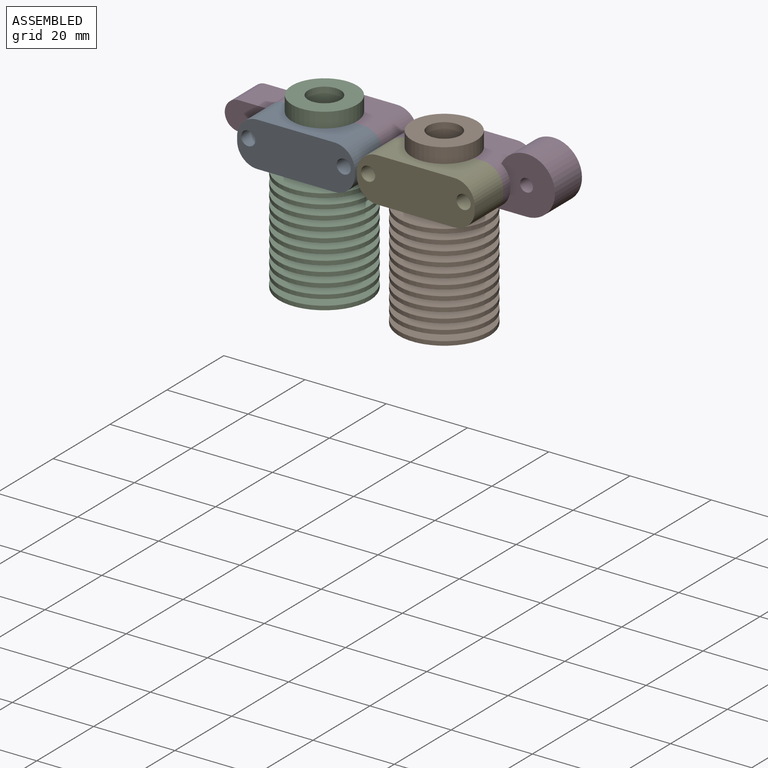
[diagram: assembled view]
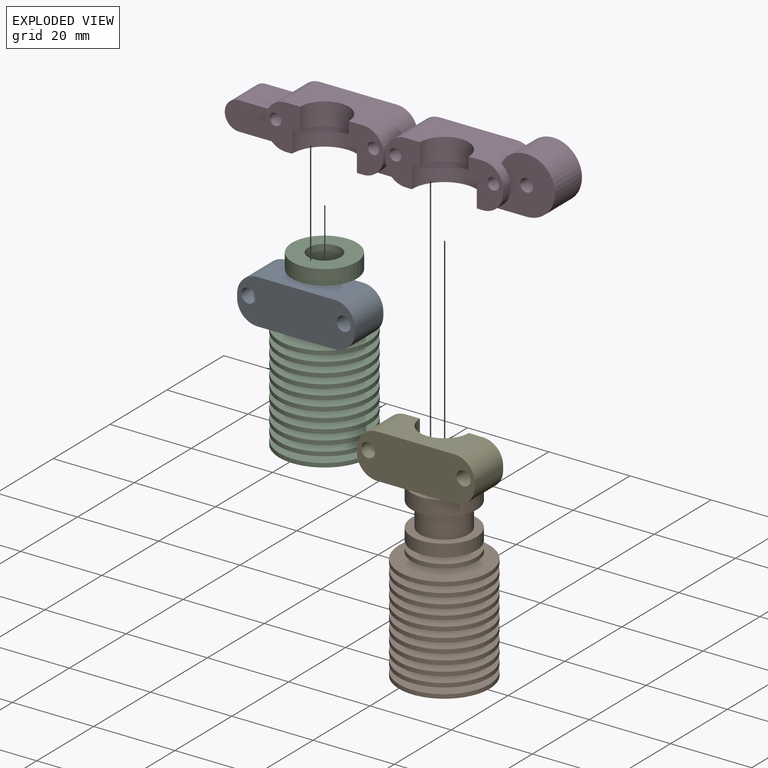
[diagram: exploded view]
GUIDED TOUR — MATED ASSEMBLY (Onshape document 79f08491d5d5d08a1efb7673, AutoMate assembly 79f08491d5d5d08a1efb7673_f55b34cfa2ff6e9371b928e5_1158f274727604746bdbfa79_default)

This assembly has 5 components, labeled P0..P4 below (a component is one placed occurrence of a part; the same part can appear more than once), held together by 4 mates. A mate is a constraint between two components; its type names the relative motion it leaves free:
  FASTENED — locks the two components together rigidly (no relative motion).
Axis/direction vectors are unit vectors and 'through' points are millimeter coordinates, both in the assembly's world frame.

MATES
  1. FASTENED "Fastened 1": P2 <-> P3, direction (0.000, 0.000, 1.000) through (-3.79, -1.99, 3.18) mm
  2. FASTENED "Fastened 2": P1 <-> P3, direction (0.000, 0.000, 1.000) through (25.71, -1.99, 3.18) mm
  3. FASTENED "Fastened 4": P4 <-> P3, direction (0.000, 0.000, 1.000) through (19.71, -1.99, 3.18) mm
  4. FASTENED "Fastened 3": P0 <-> P3, direction (0.000, 0.000, -1.000) through (2.21, -1.99, 3.18) mm

ASSEMBLY ORDER
  1. P3 — the base component [order heuristic]
  2. P0 [order heuristic]
  3. P1 [order heuristic]
  4. P2 [order heuristic]
  5. P4 [order heuristic]
Order-tag legend:
  [order heuristic] — this assembly is geometrically interlocked (no collision-free removal order exists), so components are listed in mate-graph order; insertion feasibility is not verified.

Of the 5 components, 4 carry the full construction recipe — the FeatureScript program that regenerates the part's solid from scratch; the rest are supplied as boundary geometry only.
Each toured component is shown spotlighted twice — in the assembled view, then in the exploded view, where a leader line traces a displaced component back to its assembled socket (saturated green if recipe-attached, orange if geometry-only; every other component desaturated gray) — followed by its recipe or geometry summary and the mates that hold it.
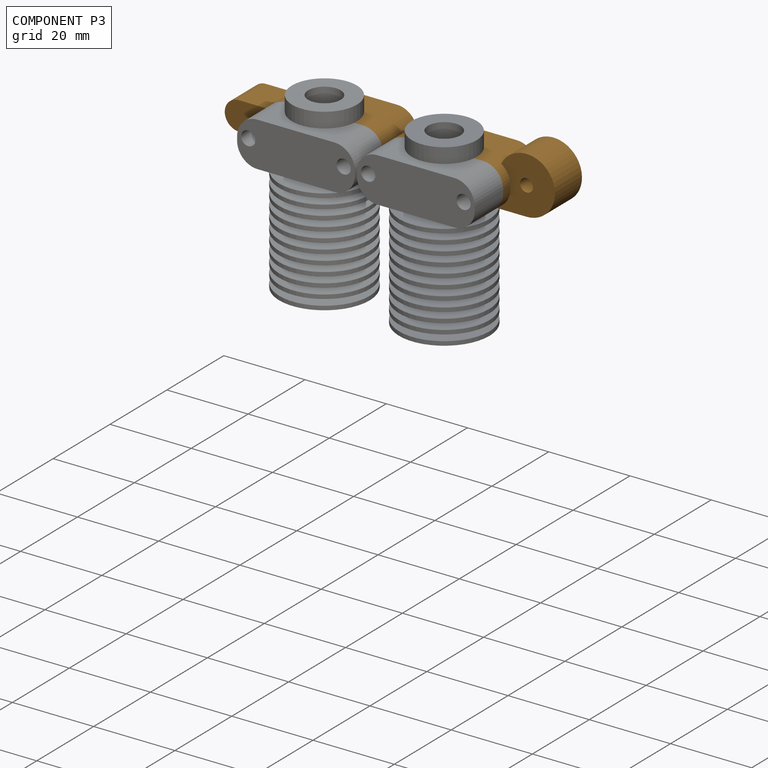
[diagram: component P3 — assembled]
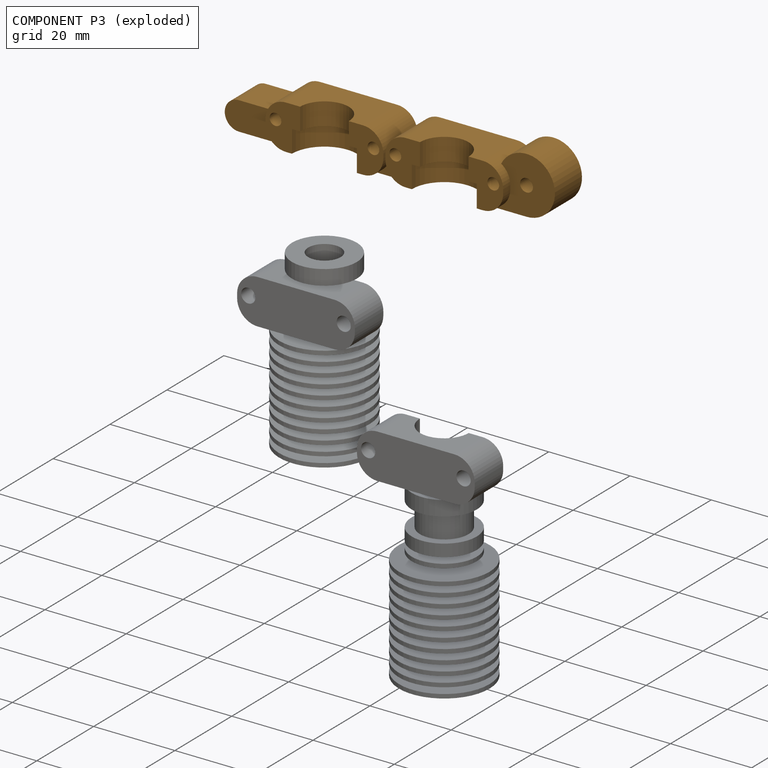
[diagram: component P3 — exploded]
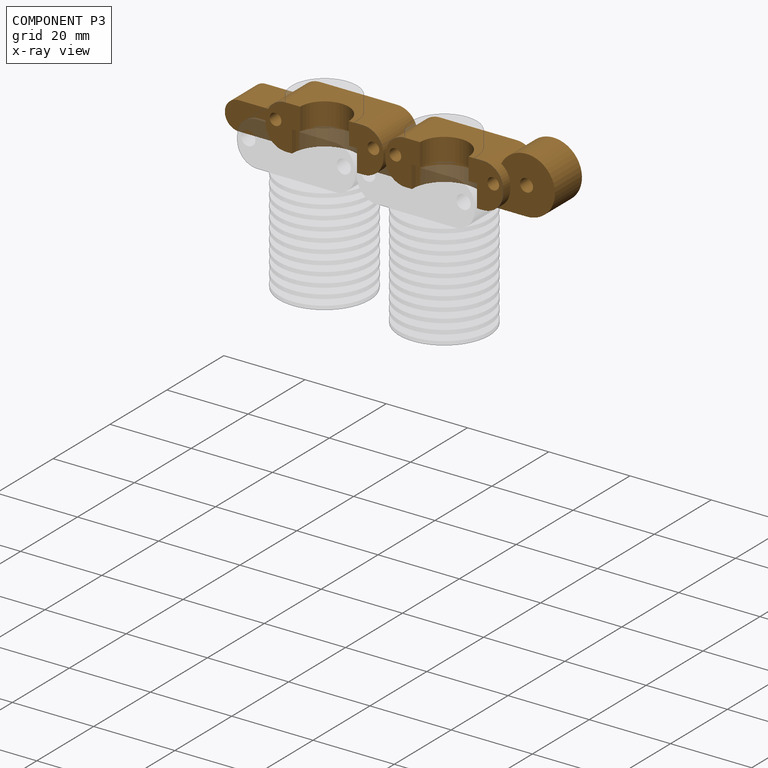
[diagram: component P3 — x-ray view]
COMPONENT P3 — geometry summary (no construction recipe available for this part):
  bounding box: 81.3 x 14.0 x 12.0 mm
  B-rep topology: 1 solid, 38 faces, 224 edges
  volume: 7298 mm^3 (53% of its bounding box)
Held by: FASTENED mate "Fastened 1" to P2; FASTENED mate "Fastened 2" to P1; FASTENED mate "Fastened 4" to P4; FASTENED mate "Fastened 3" to P0.
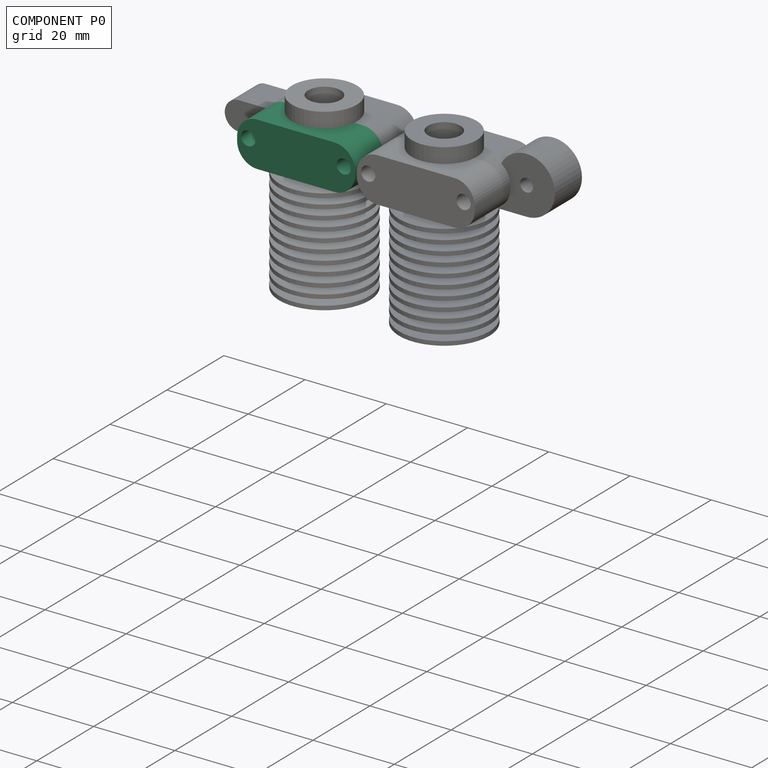
[diagram: component P0 — assembled]
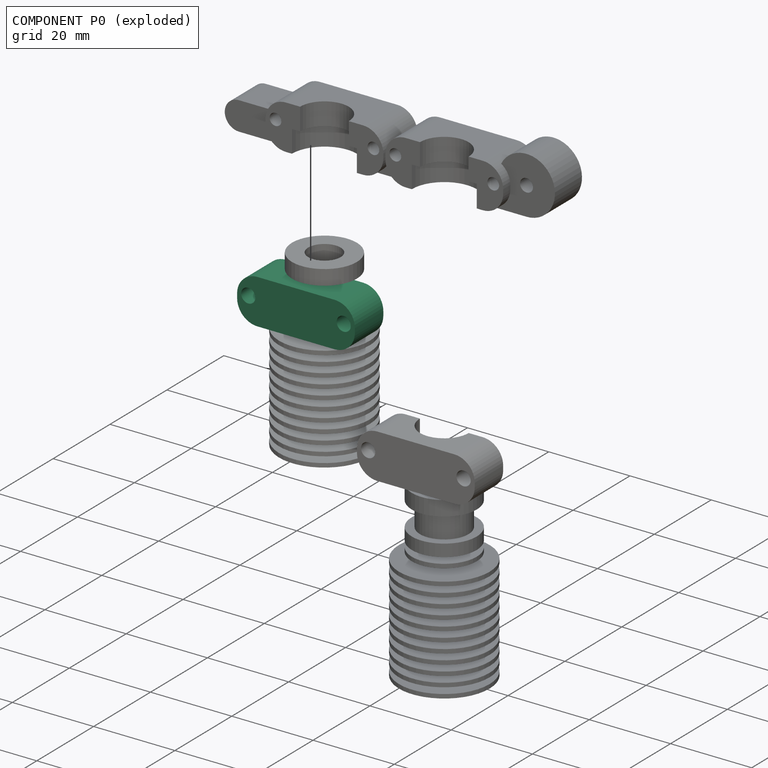
[diagram: component P0 — exploded]
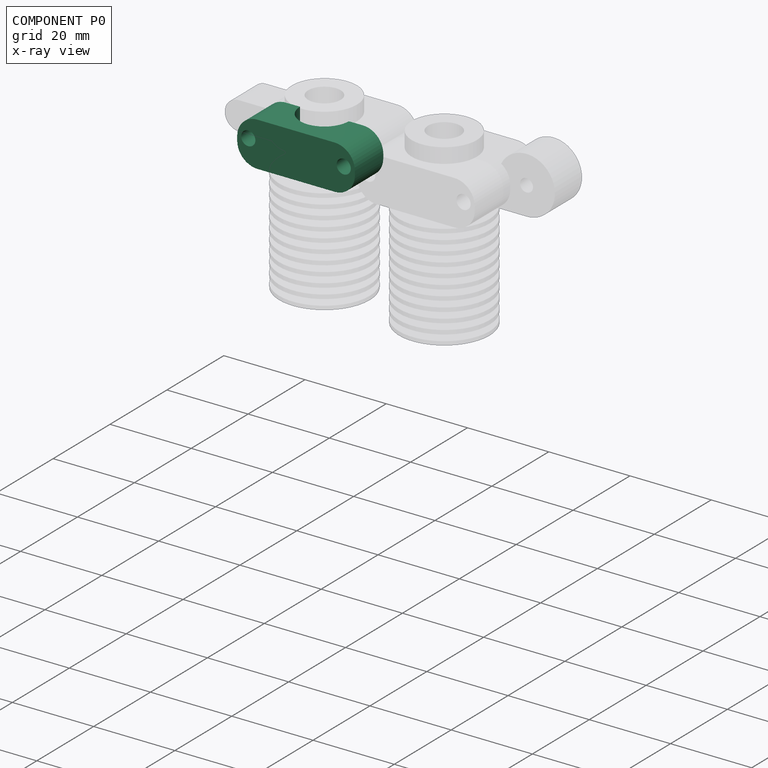
[diagram: component P0 — x-ray view]
COMPONENT P0 — recipe-attached (CADFS 00152271, mesh-verified: the recipe's output STEP matches this component's geometry to below the mesh-comparison resolution (tessellation chordal tolerance ~0.0489 mm)).
Held by: FASTENED mate "Fastened 3" to P3.
Construction recipe (FeatureScript — the CAD program that rebuilds this solid; sketch coordinates are in the units given by the * unit suffixes, e.g. mm):

FeatureScript 1511;
import(path : "onshape/std/geometry.fs", version : "1511.0");
import(path : "onshape/std/common.fs", version : "1511.0");
const mm = millimeter;
const VERTEX = EntityType.VERTEX;
const EDGE = EntityType.EDGE;
const FACE = EntityType.FACE;
const BODY = EntityType.BODY;
function v(x, y){return vector(x, y);}
function OD(order){return orderDisambiguation(order);}
function OSD(set){return originalSetDisambiguation(set);}
function TD(topology){return topologyDisambiguation(topology);}
function TDD(query){return trueDependencyDisambiguation(query);}
function sQuery(a, b, c) {return sketchEntityQuery(a, b, c);}

annotation { "Feature Type Name" : "Feature", "Feature Type Description" : "" }
export const myFeature = defineFeature(function(context is Context, id is Id, definition is map)
    precondition{}
    {
        {
            var Q0;
            Q0=qCreatedBy(makeId("Top.planeOp"),FACE);
            var sketch = newSketch(context, id + "F0", { "sketchPlane" : qUnion([Q0])});
            skLineSegment(sketch, "E0.bottom", {"start": v(0, 0) * mm, "end": v(25, 0) * mm});
            skLineSegment(sketch, "E0.top", {"start": v(0, 11) * mm, "end": v(25, 11) * mm});
            skLineSegment(sketch, "E0.left", {"start": v(0, 0) * mm, "end": v(0, 11) * mm});
            skLineSegment(sketch, "E0.right", {"start": v(25, 0) * mm, "end": v(25, 11) * mm});
            skSolve(sketch);
        }
        {
            var Q0;
            Q0=qSketchRegion(id+"F0",true);
            extrude(context, id + "F1", {"entities" : qUnion([Q0]), "depth" : 10 * mm});
        }
        {
            var Q0;
            Q0=makeQuery(id+"F1.opExtrude","SWEPT_FACE",FACE,{"disambiguationData":[OSD([sQuery(id+"F0.wireOp",EDGE,"E0.bottom")])]});
            var sketch = newSketch(context, id + "F2", { "sketchPlane" : qUnion([Q0])});
            skCircle(sketch, "E1", {"center": v(12.5, 10) * mm, "radius": 8 * mm});
            skSolve(sketch);
        }
        {
            var Q0;
            Q0=qSketchRegion(id+"F2",true);
            extrude(context, id + "F3", {"entities" : qUnion([Q0]), "operationType" : NewBodyOperationType.REMOVE, "oppositeDirection" : true, "depth" : 5.5 * mm});
        }
        {
            var Q0;
            Q0=makeQuery(id+"F1.opExtrude","SWEPT_FACE",FACE,{"disambiguationData":[OSD([sQuery(id+"F0.wireOp",EDGE,"E0.top")])]});
            var sketch = newSketch(context, id + "F4", { "sketchPlane" : qUnion([Q0])});
            skCircle(sketch, "E2", {"center": v(-12.5, 10) * mm, "radius": 6 * mm});
            skSolve(sketch);
        }
        {
            var Q0;
            Q0=qSketchRegion(id+"F4",true);
            extrude(context, id + "F5", {"entities" : qUnion([Q0]), "operationType" : NewBodyOperationType.REMOVE, "oppositeDirection" : true, "depth" : 6 * mm});
        }
        {
            var Q0;
            Q0=makeQuery(id+"F1.opExtrude","SWEPT_FACE",FACE,{"disambiguationData":[OSD([sQuery(id+"F0.wireOp",EDGE,"E0.left")])]});
            var sketch = newSketch(context, id + "F6", { "sketchPlane" : qUnion([Q0])});
            skLineSegment(sketch, "E3.bottom", {"start": v(-11, 0) * mm, "end": v(0, 0) * mm});
            skLineSegment(sketch, "E3.top", {"start": v(-11, 10) * mm, "end": v(0, 10) * mm});
            skLineSegment(sketch, "E3.left", {"start": v(-11, 0) * mm, "end": v(-11, 10) * mm});
            skLineSegment(sketch, "E3.right", {"start": v(0, 0) * mm, "end": v(0, 10) * mm});
            skSolve(sketch);
        }
        {
            var Q0;
            Q0=qSketchRegion(id+"F6",true);
            extrude(context, id + "F7", {"entities" : qUnion([Q0]), "operationType" : NewBodyOperationType.ADD, "depth" : 2 * mm});
        }
        {
            var Q0;
            Q0=makeQuery(id+"F1.opExtrude","SWEPT_FACE",FACE,{"disambiguationData":[OSD([sQuery(id+"F0.wireOp",EDGE,"E0.right")])]});
            var sketch = newSketch(context, id + "F8", { "sketchPlane" : qUnion([Q0])});
            skLineSegment(sketch, "E4.bottom", {"start": v(11, 10) * mm, "end": v(0, 10) * mm});
            skLineSegment(sketch, "E4.top", {"start": v(11, 0) * mm, "end": v(0, 0) * mm});
            skLineSegment(sketch, "E4.left", {"start": v(11, 10) * mm, "end": v(11, 0) * mm});
            skLineSegment(sketch, "E4.right", {"start": v(0, 10) * mm, "end": v(0, 0) * mm});
            skSolve(sketch);
        }
        {
            var Q0;
            Q0=qSketchRegion(id+"F8",true);
            extrude(context, id + "F9", {"entities" : qUnion([Q0]), "operationType" : NewBodyOperationType.ADD, "depth" : 2 * mm});
        }
        {
            var Q0;
            Q0=makeQuery(id+"F9.opExtrude","CAP_EDGE",EDGE,{"disambiguationData":[OSD([sQuery(id+"F8.wireOp",EDGE,"E4.left")])],"isStart":false});
            var Q1;
            Q1=makeQuery(id+"F9.opExtrude","CAP_EDGE",EDGE,{"disambiguationData":[OSD([sQuery(id+"F8.wireOp",EDGE,"E4.right")])],"isStart":false});
            var Q2;
            Q2=makeQuery(id+"F7.opExtrude","CAP_EDGE",EDGE,{"disambiguationData":[OSD([sQuery(id+"F6.wireOp",EDGE,"E3.left")])],"isStart":false});
            var Q3;
            Q3=makeQuery(id+"F7.opExtrude","CAP_EDGE",EDGE,{"disambiguationData":[OSD([sQuery(id+"F6.wireOp",EDGE,"E3.right")])],"isStart":false});
            fillet(context, id + "F10", {"entities" : qUnion([Q0, Q1, Q2, Q3]), "radius" : 5 * mm, "tangentPropagation" : true, "allowEdgeOverflow" : false});
        }
        {
            var Q0;
            {var subQ0=sQuery(id+"F0.wireOp",EDGE,"E0.bottom");var subQ1=sQuery(id+"F0.wireOp",EDGE,"E0.top");var subQ2=sQuery(id+"F0.wireOp",EDGE,"E0.left");Q0=makeQuery(id+"F5.boolean.opBoolean","SPLIT",FACE,{"disambiguationData":[TD([makeQuery(id+"F1.opExtrude","SWEPT_FACE",FACE,{"disambiguationData":[OSD([subQ2])]})])],"derivedFrom":makeQuery(id+"F1.opExtrude","CAP_FACE",FACE,{"disambiguationData":[OSD([subQ0,subQ1,subQ2,sQuery(id+"F0.wireOp",EDGE,"E0.right")])],"isStart":false})});}
            var sketch = newSketch(context, id + "F11", { "sketchPlane" : qUnion([Q0])});
            skCircle(sketch, "E5", {"center": v(0.75, 6.25) * mm, "radius": 1.75 * mm});
            skCircle(sketch, "E6", {"center": v(24.25, 6.25) * mm, "radius": 1.75 * mm});
            skSolve(sketch);
        }
        {
            var Q0;
            Q0=qSketchRegion(id+"F11",true);
            extrude(context, id + "F12", {"entities" : qUnion([Q0]), "operationType" : NewBodyOperationType.REMOVE, "oppositeDirection" : true, "depth" : 25 * mm});
        }
    });
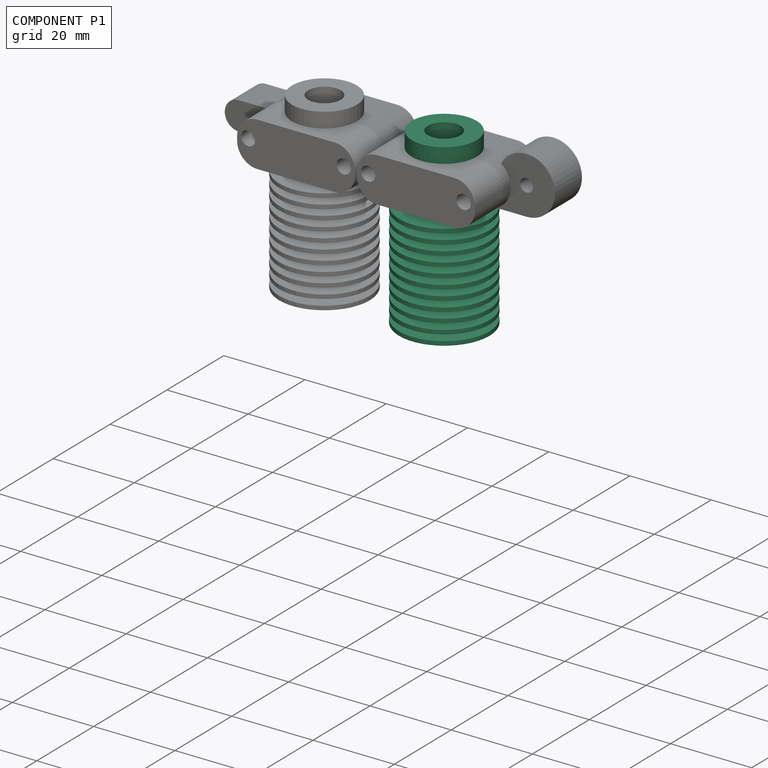
[diagram: component P1 — assembled]
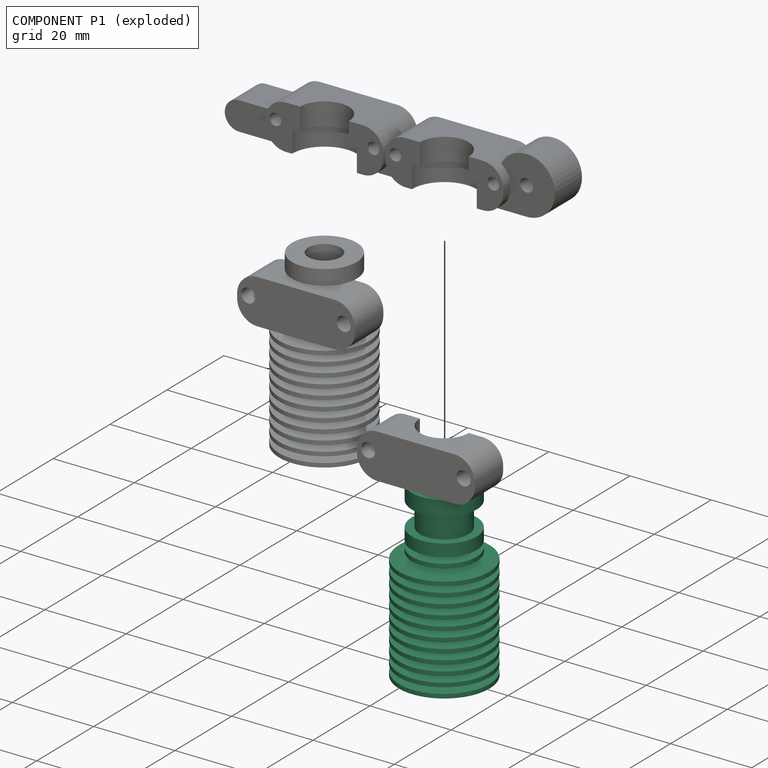
[diagram: component P1 — exploded]
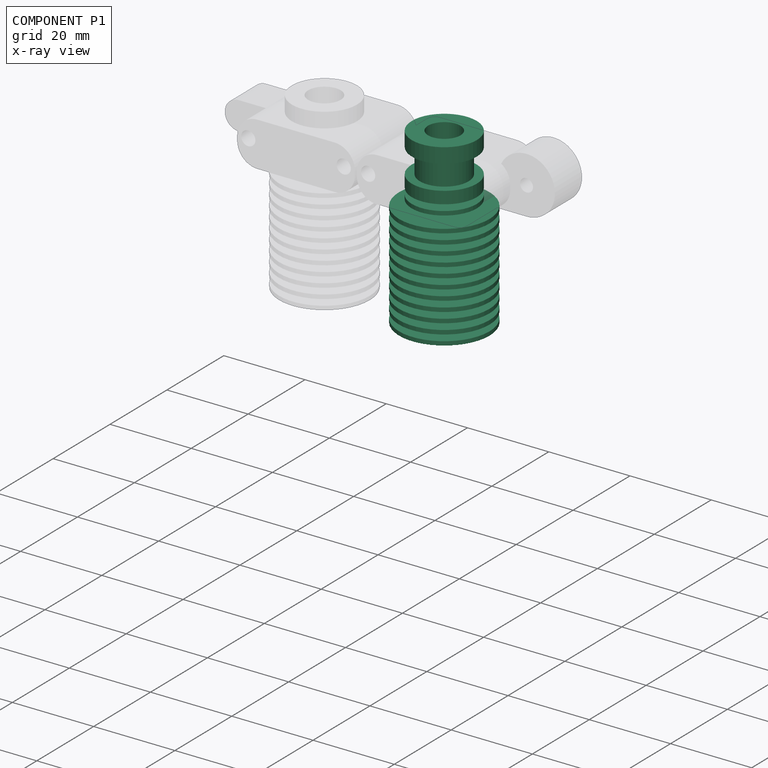
[diagram: component P1 — x-ray view]
COMPONENT P1 — recipe-attached (CADFS 00152267, mesh-verified: the recipe's output STEP matches this component's geometry to below the mesh-comparison resolution (tessellation chordal tolerance ~0.0796 mm)).
Held by: FASTENED mate "Fastened 2" to P3.
Construction recipe (FeatureScript — the CAD program that rebuilds this solid; sketch coordinates are in the units given by the * unit suffixes, e.g. mm):

FeatureScript 1511;
import(path : "onshape/std/geometry.fs", version : "1511.0");
import(path : "onshape/std/common.fs", version : "1511.0");
const mm = millimeter;
const VERTEX = EntityType.VERTEX;
const EDGE = EntityType.EDGE;
const FACE = EntityType.FACE;
const BODY = EntityType.BODY;
function v(x, y){return vector(x, y);}
function OD(order){return orderDisambiguation(order);}
function OSD(set){return originalSetDisambiguation(set);}
function TD(topology){return topologyDisambiguation(topology);}
function TDD(query){return trueDependencyDisambiguation(query);}
function sQuery(a, b, c) {return sketchEntityQuery(a, b, c);}

annotation { "Feature Type Name" : "Feature", "Feature Type Description" : "" }
export const myFeature = defineFeature(function(context is Context, id is Id, definition is map)
    precondition{}
    {
        {
            var Q0;
            Q0=qCreatedBy(makeId("Top.planeOp"),FACE);
            var sketch = newSketch(context, id + "F0", { "sketchPlane" : qUnion([Q0])});
            skCircle(sketch, "E0", {"center": v(0, 0) * mm, "radius": 8 * mm});
            skSolve(sketch);
        }
        {
            var Q0;
            Q0=makeQuery(id+"F0.imprint","IMPRINT",FACE,{"disambiguationData":[TD([[makeQuery(id+"F0.imprint","IMPRINT",EDGE,{"derivedFrom":sQuery(id+"F0.wireOp",EDGE,"E0")}),1.0]])]});
            var Q1;
            Q1=sQuery(id+"F0.wireOp",EDGE,"E0");
            extrude(context, id + "F1", {"entities" : qUnion([Q0]), "surfaceEntities" : qUnion([Q1]), "oppositeDirection" : true, "depth" : 3.7 * mm});
        }
        {
            var Q0;
            Q0=makeQuery(id+"F1.opExtrude","CAP_FACE",FACE,{"disambiguationData":[OSD([sQuery(id+"F0.wireOp",EDGE,"E0")])],"isStart":false});
            var sketch = newSketch(context, id + "F2", { "sketchPlane" : qUnion([Q0])});
            skCircle(sketch, "E1", {"center": v(0, 0) * mm, "radius": 6 * mm});
            skSolve(sketch);
        }
        {
            var Q0;
            Q0=makeQuery(id+"F2.imprint","IMPRINT",FACE,{"disambiguationData":[TD([[makeQuery(id+"F2.imprint","IMPRINT",EDGE,{"derivedFrom":sQuery(id+"F2.wireOp",EDGE,"E1")}),1.0]])]});
            var Q1;
            Q1=sQuery(id+"F2.wireOp",EDGE,"E1");
            extrude(context, id + "F3", {"entities" : qUnion([Q0]), "operationType" : NewBodyOperationType.ADD, "surfaceEntities" : qUnion([Q1]), "depth" : 6 * mm});
        }
        {
            var Q0;
            Q0=makeQuery(id+"F3.opExtrude","CAP_FACE",FACE,{"disambiguationData":[OSD([sQuery(id+"F2.wireOp",EDGE,"E1")])],"isStart":false});
            var sketch = newSketch(context, id + "F4", { "sketchPlane" : qUnion([Q0])});
            skCircle(sketch, "E2", {"center": v(0, 0) * mm, "radius": 8 * mm});
            skSolve(sketch);
        }
        {
            var Q0;
            Q0 = qSketchRegion(id + "F4", true);
            extrude(context, id + "F5", {"entities" : qUnion([Q0]), "operationType" : NewBodyOperationType.ADD, "depth" : 3 * mm});
        }
        {
            var Q0;
            Q0=qCreatedBy(makeId("Front.planeOp"),FACE);
            var sketch = newSketch(context, id + "F6", { "sketchPlane" : qUnion([Q0])});
            skLineSegment(sketch, "E3", {"start": v(0, 0) * mm, "end": v(0, -12.7) * mm});
            skLineSegment(sketch, "E4.bottom", {"start": v(0, -12.7) * mm, "end": v(4, -12.7) * mm});
            skLineSegment(sketch, "E4.top", {"start": v(0, -14.2) * mm, "end": v(4, -14.2) * mm});
            skLineSegment(sketch, "E4.left", {"start": v(0, -12.7) * mm, "end": v(0, -14.2) * mm});
            skLineSegment(sketch, "E4.right", {"start": v(4, -12.7) * mm, "end": v(4, -14.2) * mm});
            skLineSegment(sketch, "E5.bottom", {"start": v(0, -14.2) * mm, "end": v(8, -14.2) * mm});
            skLineSegment(sketch, "E5.top", {"start": v(0, -15.2) * mm, "end": v(8, -15.2) * mm});
            skLineSegment(sketch, "E5.left", {"start": v(0, -14.2) * mm, "end": v(0, -15.2) * mm});
            skLineSegment(sketch, "E5.right", {"start": v(8, -14.2) * mm, "end": v(8, -15.2) * mm});
            skLineSegment(sketch, "E6", {"start": v(0, -15.2) * mm, "end": v(0, -16.7) * mm});
            skLineSegment(sketch, "E7.bottom", {"start": v(0, -16.7) * mm, "end": v(11.15, -16.7) * mm});
            skLineSegment(sketch, "E7.top", {"start": v(0, -17.7) * mm, "end": v(11.15, -17.7) * mm});
            skLineSegment(sketch, "E7.left", {"start": v(0, -16.7) * mm, "end": v(0, -17.7) * mm});
            skLineSegment(sketch, "E7.right", {"start": v(11.15, -16.7) * mm, "end": v(11.15, -17.7) * mm});
            skLineSegment(sketch, "E8.1.0.0", {"start": v(0, -20.2) * mm, "end": v(11.15, -20.2) * mm});
            skLineSegment(sketch, "E8.1.0.1", {"start": v(0, -19.2) * mm, "end": v(11.15, -19.2) * mm});
            skLineSegment(sketch, "E8.1.0.2", {"start": v(0, -19.2) * mm, "end": v(0, -20.2) * mm});
            skLineSegment(sketch, "E8.1.0.3", {"start": v(11.15, -19.2) * mm, "end": v(11.15, -20.2) * mm});
            skLineSegment(sketch, "E8.2.0.0", {"start": v(0, -22.7) * mm, "end": v(11.15, -22.7) * mm});
            skLineSegment(sketch, "E8.2.0.1", {"start": v(0, -21.7) * mm, "end": v(11.15, -21.7) * mm});
            skLineSegment(sketch, "E8.2.0.2", {"start": v(0, -21.7) * mm, "end": v(0, -22.7) * mm});
            skLineSegment(sketch, "E8.2.0.3", {"start": v(11.15, -21.7) * mm, "end": v(11.15, -22.7) * mm});
            skLineSegment(sketch, "E8.3.0.0", {"start": v(0, -25.2) * mm, "end": v(11.15, -25.2) * mm});
            skLineSegment(sketch, "E8.3.0.1", {"start": v(0, -24.2) * mm, "end": v(11.15, -24.2) * mm});
            skLineSegment(sketch, "E8.3.0.2", {"start": v(0, -24.2) * mm, "end": v(0, -25.2) * mm});
            skLineSegment(sketch, "E8.3.0.3", {"start": v(11.15, -24.2) * mm, "end": v(11.15, -25.2) * mm});
            skLineSegment(sketch, "E8.4.0.0", {"start": v(0, -27.7) * mm, "end": v(11.15, -27.7) * mm});
            skLineSegment(sketch, "E8.4.0.1", {"start": v(0, -26.7) * mm, "end": v(11.15, -26.7) * mm});
            skLineSegment(sketch, "E8.4.0.2", {"start": v(0, -26.7) * mm, "end": v(0, -27.7) * mm});
            skLineSegment(sketch, "E8.4.0.3", {"start": v(11.15, -26.7) * mm, "end": v(11.15, -27.7) * mm});
            skLineSegment(sketch, "E8.5.0.0", {"start": v(0, -30.2) * mm, "end": v(11.15, -30.2) * mm});
            skLineSegment(sketch, "E8.5.0.1", {"start": v(0, -29.2) * mm, "end": v(11.15, -29.2) * mm});
            skLineSegment(sketch, "E8.5.0.2", {"start": v(0, -29.2) * mm, "end": v(0, -30.2) * mm});
            skLineSegment(sketch, "E8.5.0.3", {"start": v(11.15, -29.2) * mm, "end": v(11.15, -30.2) * mm});
            skLineSegment(sketch, "E8.6.0.0", {"start": v(0, -32.7) * mm, "end": v(11.15, -32.7) * mm});
            skLineSegment(sketch, "E8.6.0.1", {"start": v(0, -31.7) * mm, "end": v(11.15, -31.7) * mm});
            skLineSegment(sketch, "E8.6.0.2", {"start": v(0, -31.7) * mm, "end": v(0, -32.7) * mm});
            skLineSegment(sketch, "E8.6.0.3", {"start": v(11.15, -31.7) * mm, "end": v(11.15, -32.7) * mm});
            skLineSegment(sketch, "E8.7.0.0", {"start": v(0, -35.2) * mm, "end": v(11.15, -35.2) * mm});
            skLineSegment(sketch, "E8.7.0.1", {"start": v(0, -34.2) * mm, "end": v(11.15, -34.2) * mm});
            skLineSegment(sketch, "E8.7.0.2", {"start": v(0, -34.2) * mm, "end": v(0, -35.2) * mm});
            skLineSegment(sketch, "E8.7.0.3", {"start": v(11.15, -34.2) * mm, "end": v(11.15, -35.2) * mm});
            skLineSegment(sketch, "E8.8.0.0", {"start": v(0, -37.7) * mm, "end": v(11.15, -37.7) * mm});
            skLineSegment(sketch, "E8.8.0.1", {"start": v(0, -36.7) * mm, "end": v(11.15, -36.7) * mm});
            skLineSegment(sketch, "E8.8.0.2", {"start": v(0, -36.7) * mm, "end": v(0, -37.7) * mm});
            skLineSegment(sketch, "E8.8.0.3", {"start": v(11.15, -36.7) * mm, "end": v(11.15, -37.7) * mm});
            skLineSegment(sketch, "E8.9.0.0", {"start": v(0, -40.2) * mm, "end": v(11.15, -40.2) * mm});
            skLineSegment(sketch, "E8.9.0.1", {"start": v(0, -39.2) * mm, "end": v(11.15, -39.2) * mm});
            skLineSegment(sketch, "E8.9.0.2", {"start": v(0, -39.2) * mm, "end": v(0, -40.2) * mm});
            skLineSegment(sketch, "E8.9.0.3", {"start": v(11.15, -39.2) * mm, "end": v(11.15, -40.2) * mm});
            skLineSegment(sketch, "E8.10.0.0", {"start": v(0, -42.7) * mm, "end": v(11.15, -42.7) * mm});
            skLineSegment(sketch, "E8.10.0.1", {"start": v(0, -41.7) * mm, "end": v(11.15, -41.7) * mm});
            skLineSegment(sketch, "E8.10.0.2", {"start": v(0, -41.7) * mm, "end": v(0, -42.7) * mm});
            skLineSegment(sketch, "E8.10.0.3", {"start": v(11.15, -41.7) * mm, "end": v(11.15, -42.7) * mm});
            skLineSegment(sketch, "E8.direction1", {"start": v(0, -17.7) * mm, "end": v(0, -20.2) * mm, "construction": true});
            skLineSegment(sketch, "E9", {"start": v(0, -41.7) * mm, "end": v(6, -41.7) * mm});
            skLineSegment(sketch, "E10", {"start": v(4.07, -15.2) * mm, "end": v(4.18, -16.7) * mm});
            skLineSegment(sketch, "E11.trimOffspring", {"start": v(4.25, -17.7) * mm, "end": v(4.36, -19.2) * mm});
            skLineSegment(sketch, "E12.trimOffspring", {"start": v(4.44, -20.2) * mm, "end": v(4.55, -21.7) * mm});
            skLineSegment(sketch, "E13.trimOffspring", {"start": v(4.62, -22.7) * mm, "end": v(4.73, -24.2) * mm});
            skLineSegment(sketch, "E14.trimOffspring", {"start": v(4.8, -25.2) * mm, "end": v(4.9, -26.7) * mm});
            skLineSegment(sketch, "E15.trimOffspring", {"start": v(4.98, -27.7) * mm, "end": v(5.1, -29.2) * mm});
            skLineSegment(sketch, "E16.trimOffspring", {"start": v(5.16, -30.2) * mm, "end": v(5.27, -31.7) * mm});
            skLineSegment(sketch, "E17.trimOffspring", {"start": v(5.35, -32.7) * mm, "end": v(5.45, -34.2) * mm});
            skLineSegment(sketch, "E18.trimOffspring", {"start": v(5.53, -35.2) * mm, "end": v(5.64, -36.7) * mm});
            skLineSegment(sketch, "E19.trimOffspring", {"start": v(5.7, -37.7) * mm, "end": v(5.82, -39.2) * mm});
            skLineSegment(sketch, "E20.trimOffspring", {"start": v(5.9, -40.2) * mm, "end": v(6, -41.7) * mm});
            skLineSegment(sketch, "E21", {"start": v(0, -17.7) * mm, "end": v(0, -19.2) * mm});
            skLineSegment(sketch, "E22", {"start": v(0, -20.2) * mm, "end": v(0, -21.7) * mm});
            skLineSegment(sketch, "E23", {"start": v(0, -22.7) * mm, "end": v(0, -24.2) * mm});
            skLineSegment(sketch, "E24", {"start": v(0, -25.2) * mm, "end": v(0, -26.7) * mm});
            skLineSegment(sketch, "E25", {"start": v(0, -27.7) * mm, "end": v(0, -29.2) * mm});
            skLineSegment(sketch, "E26", {"start": v(0, -30.2) * mm, "end": v(0, -31.7) * mm});
            skLineSegment(sketch, "E27", {"start": v(0, -32.7) * mm, "end": v(0, -34.2) * mm});
            skLineSegment(sketch, "E28", {"start": v(0, -35.2) * mm, "end": v(0, -36.7) * mm});
            skLineSegment(sketch, "E29", {"start": v(0, -37.7) * mm, "end": v(0, -39.2) * mm});
            skLineSegment(sketch, "E30", {"start": v(0, -40.2) * mm, "end": v(0, -41.7) * mm});
            skSolve(sketch);
        }
        {
            var Q0;
            Q0 = qSketchRegion(id + "F6", true);
            var Q1;
            Q1=sQuery(id+"F6.wireOp",EDGE,"E3");
            revolve(context, id + "F7", {"operationType" : NewBodyOperationType.ADD, "entities" : qUnion([Q0]), "axis" : qUnion([Q1]), "revolveType" : RevolveType.FULL});
        }
        {
            var Q0;
            Q0=makeQuery(id+"F1.opExtrude","CAP_FACE",FACE,{"disambiguationData":[OSD([sQuery(id+"F0.wireOp",EDGE,"E0")])],"isStart":true});
            var sketch = newSketch(context, id + "F8", { "sketchPlane" : qUnion([Q0])});
            skCircle(sketch, "E31", {"center": v(0, 0) * mm, "radius": 2.1 * mm});
            skSolve(sketch);
        }
        {
            var Q0;
            Q0 = qSketchRegion(id + "F8", true);
            extrude(context, id + "F9", {"entities" : qUnion([Q0]), "operationType" : NewBodyOperationType.REMOVE, "oppositeDirection" : true, "depth" : 42.7 * mm});
        }
        {
            var Q0;
            Q0=makeQuery(id+"F1.opExtrude","CAP_FACE",FACE,{"disambiguationData":[OSD([sQuery(id+"F0.wireOp",EDGE,"E0")])],"isStart":true});
            var sketch = newSketch(context, id + "F10", { "sketchPlane" : qUnion([Q0])});
            skCircle(sketch, "E32", {"center": v(0, 0) * mm, "radius": 4 * mm});
            skSolve(sketch);
        }
        {
            var Q0;
            Q0 = qSketchRegion(id + "F10", true);
            extrude(context, id + "F11", {"entities" : qUnion([Q0]), "operationType" : NewBodyOperationType.REMOVE, "oppositeDirection" : true, "depth" : 6 * mm});
        }
        {
            var Q0;
            Q0=makeQuery(id+"F11.boolean.opBoolean","INTERSECT",EDGE,{"derivedFrom":[makeQuery(id+"F9.boolean.opBoolean","COPY",FACE,{"derivedFrom":makeQuery(id+"F9.opExtrude","SWEPT_FACE",FACE,{"disambiguationData":[OSD([sQuery(id+"F8.wireOp",EDGE,"E31")])]})}),makeQuery(id+"F11.opExtrude","CAP_FACE",FACE,{"disambiguationData":[OSD([sQuery(id+"F10.wireOp",EDGE,"E32")])],"isStart":false})]});
            chamfer(context, id + "F12", {"entities" : qUnion([Q0]), "width" : 2 * mm, "tangentPropagation" : true});
        }
        {
            var Q0;
            Q0=makeQuery(id+"F7.opRevolve","SWEPT_FACE",FACE,{"disambiguationData":[OSD([sQuery(id+"F6.wireOp",EDGE,"E8.10.0.0")])]});
            var sketch = newSketch(context, id + "F13", { "sketchPlane" : qUnion([Q0])});
            skCircle(sketch, "E33", {"center": v(0, 0) * mm, "radius": 3 * mm});
            skSolve(sketch);
        }
        {
            var Q0;
            Q0 = qSketchRegion(id + "F13", true);
            extrude(context, id + "F14", {"entities" : qUnion([Q0]), "operationType" : NewBodyOperationType.REMOVE, "oppositeDirection" : true, "depth" : 14.8 * mm});
        }
        {
            var Q0;
            Q0=makeQuery(id+"F14.boolean.opBoolean","INTERSECT",EDGE,{"derivedFrom":[makeQuery(id+"F9.boolean.opBoolean","COPY",FACE,{"derivedFrom":makeQuery(id+"F9.opExtrude","SWEPT_FACE",FACE,{"disambiguationData":[OSD([sQuery(id+"F8.wireOp",EDGE,"E31")])]})}),makeQuery(id+"F14.opExtrude","CAP_FACE",FACE,{"disambiguationData":[OSD([sQuery(id+"F13.wireOp",EDGE,"E33")])],"isStart":false})]});
            chamfer(context, id + "F15", {"entities" : qUnion([Q0]), "width" : 1 * mm, "tangentPropagation" : true});
        }
    });
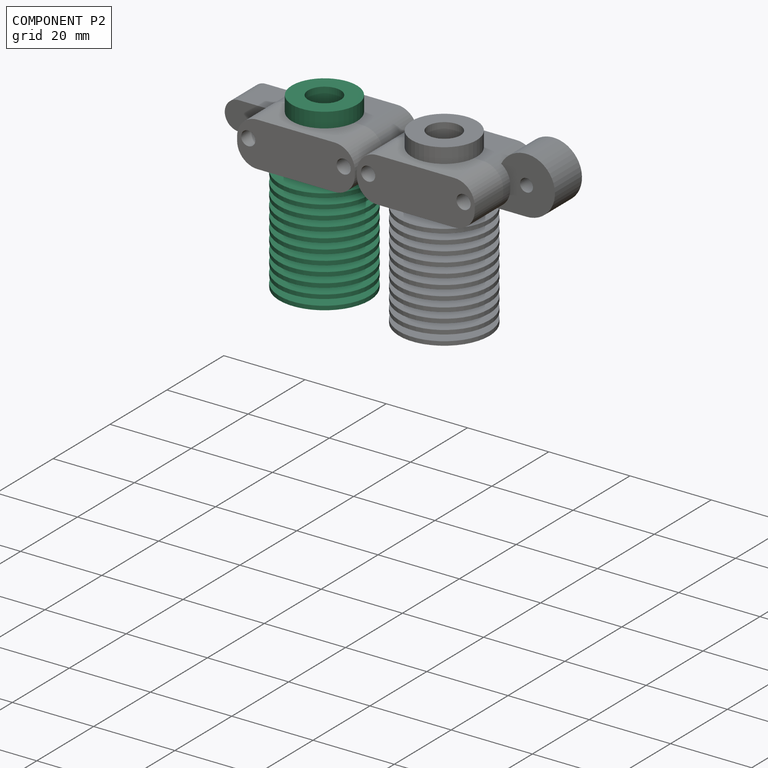
[diagram: component P2 — assembled]
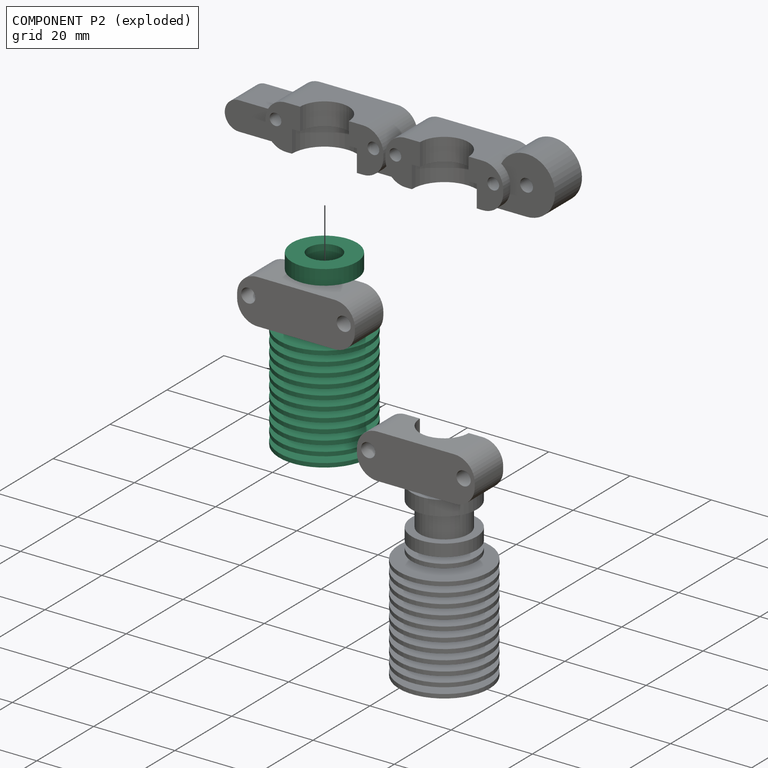
[diagram: component P2 — exploded]
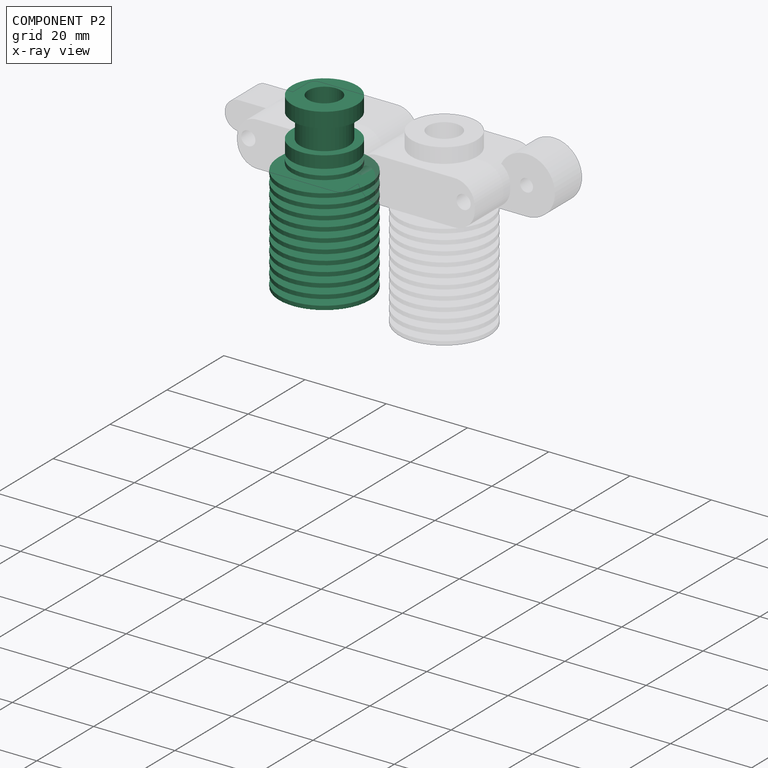
[diagram: component P2 — x-ray view]
COMPONENT P2 — same part as P1 (CADFS 00152267); its construction recipe is shown at P1.
Held by: FASTENED mate "Fastened 1" to P3.
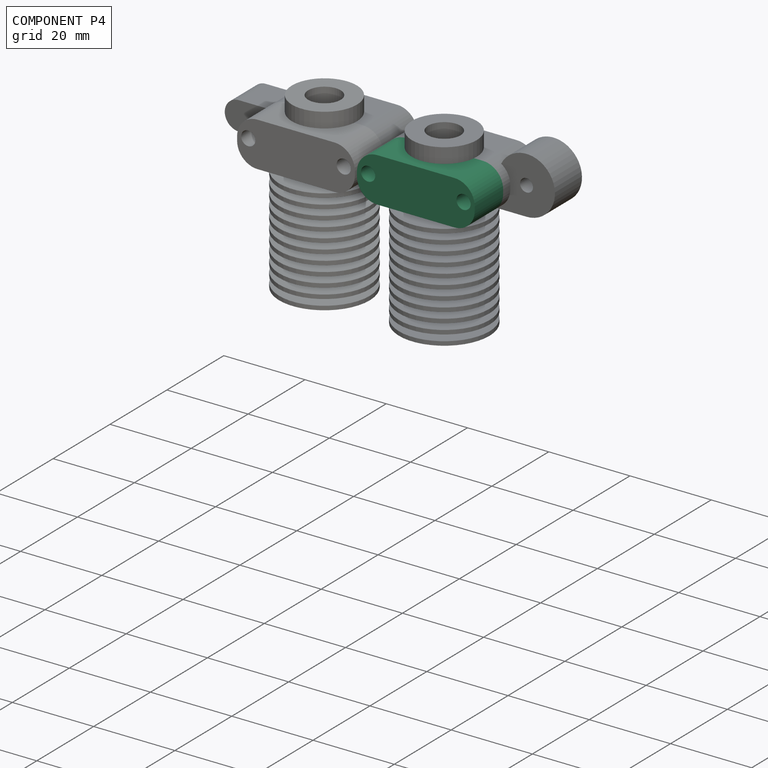
[diagram: component P4 — assembled]
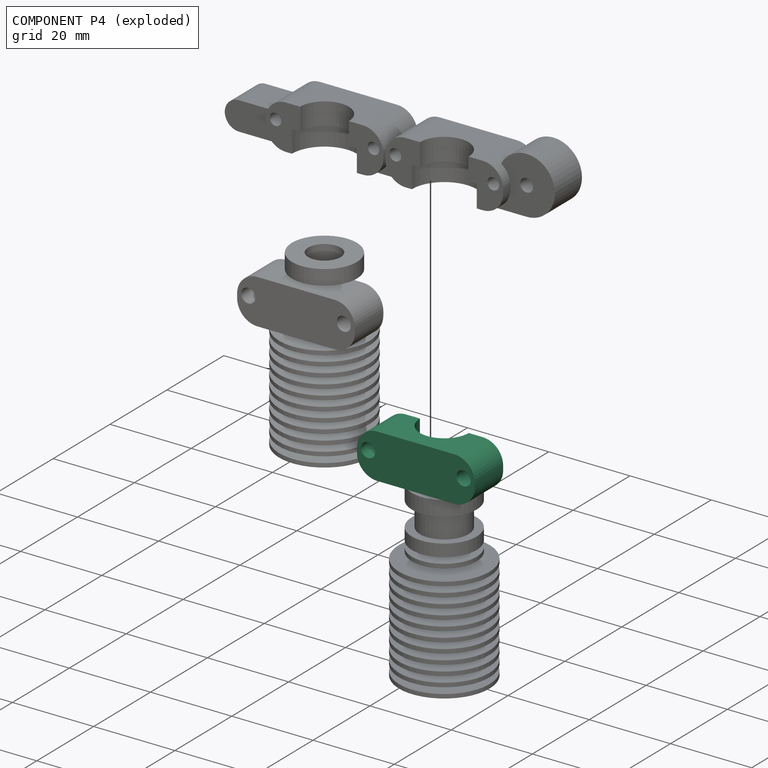
[diagram: component P4 — exploded]
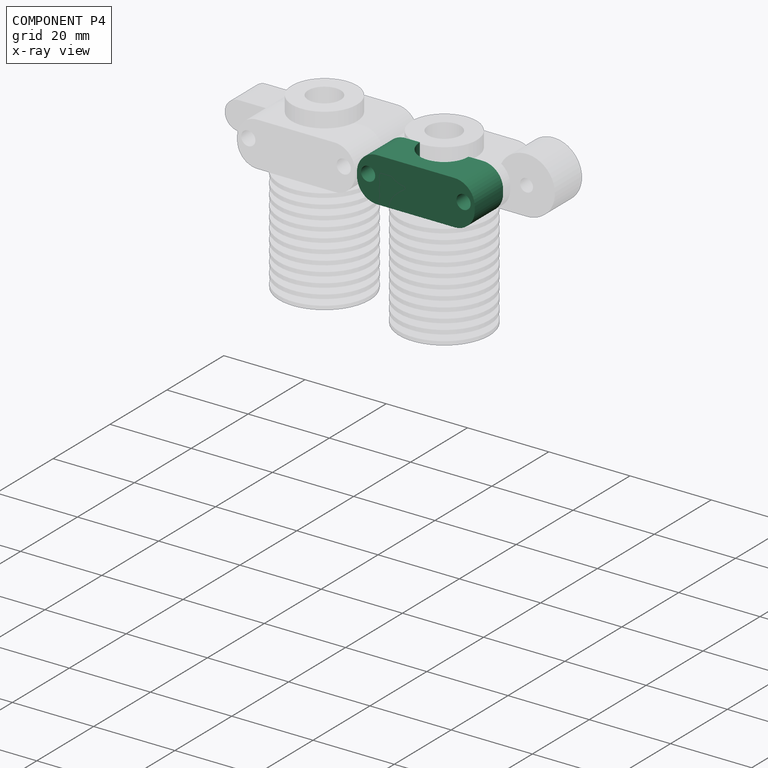
[diagram: component P4 — x-ray view]
COMPONENT P4 — same part as P0 (CADFS 00152271); its construction recipe is shown at P0.
Held by: FASTENED mate "Fastened 4" to P3.
PROVENANCE & LICENSES
Assembly (occurrences, transforms, mates, per-part STEP geometry): AutoMate dataset, Zenodo record 7776208, CC0.
Construction recipes: CADFS (HuggingFace VladPyatov/CADFS, CC-BY-4.0, layered over the ABC dataset), FeatureScript reconstruction programs keyed by ABC model id.
Join: ABC meta listings map ABC model id -> Onshape documentId; within a shared document, parts are matched by geometric signature (bounding-box dims + volume at 0.1% relative tolerance, exact B-rep face/solid counts).
Verification: 4 of this assembly's 5 components carry a recipe attachment, and every attachment is mesh-verified: the CADFS STEP and the AutoMate member STEP were compared as meshes in their shared local frame (symmetric sampled-point-to-mesh distance); worst across the 4 attachments: below the mesh-comparison resolution (tessellation chordal tolerance ~0.0796 mm) on a 53 mm part.
Renders: orthographic iso camera (az 35 / el 25); the floor grid conveys scale (grid pitch printed in each image; no ruler). In the exploded view each component is displaced by its stored offset vector: the offsets alone carry the explosion direction (mate normal/axis signs are not orientation cues and do not encode it), and separation distances are assigned per mate-chain, not proportionally to assembly-order depth.
